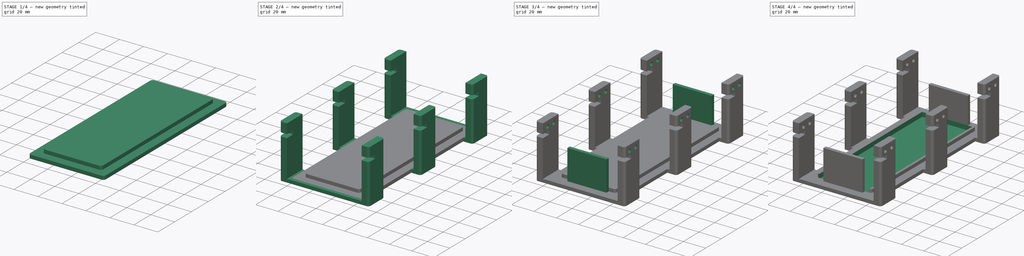
[diagram: build sequence overview — one tinted view per stage of 4, left to right]
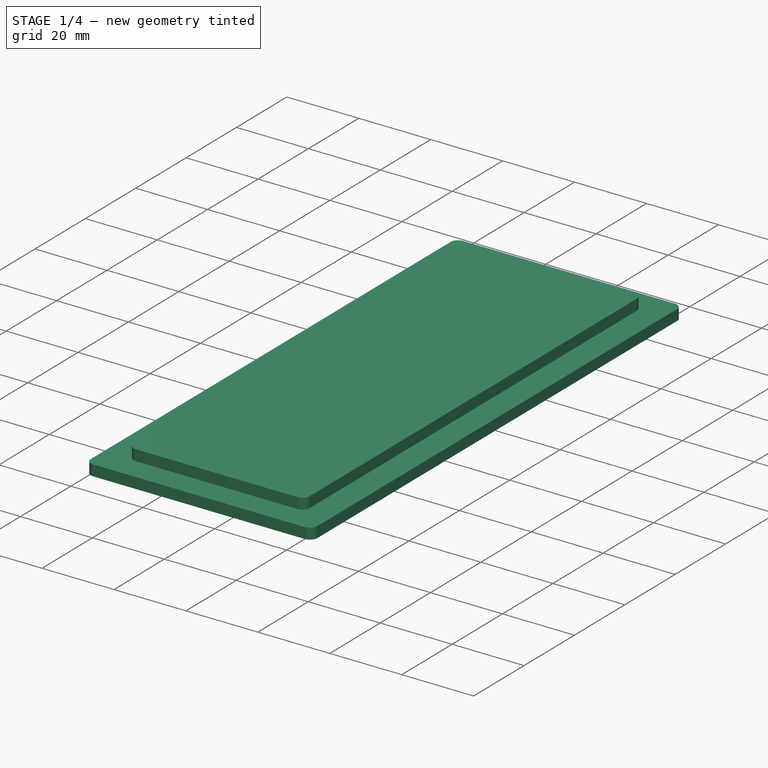
[diagram: stage 1 of 4 — iso view after this stage's code; geometry added in this stage tinted green]
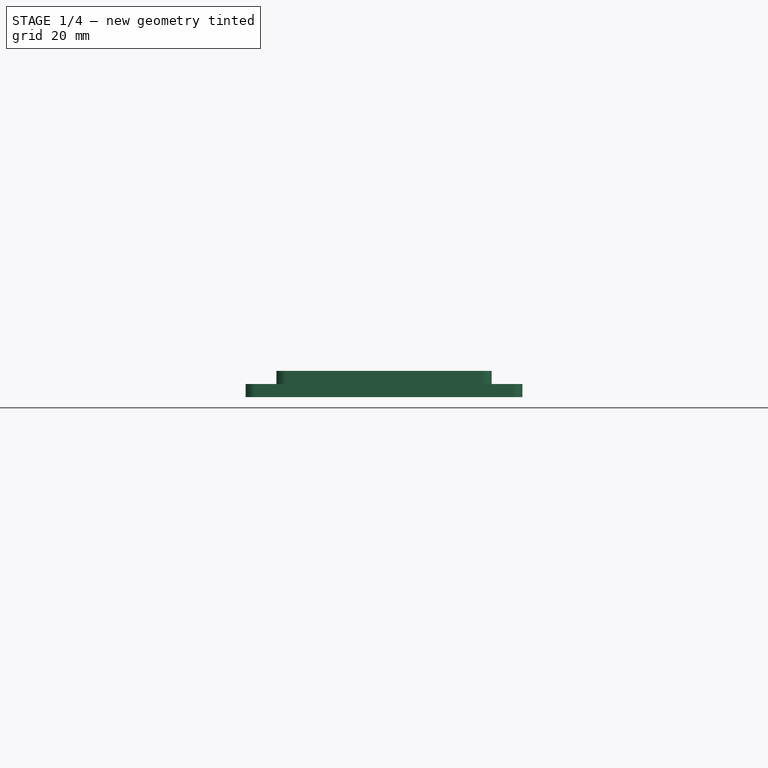
[diagram: stage 1 of 4 — front view after this stage's code; geometry added in this stage tinted green]
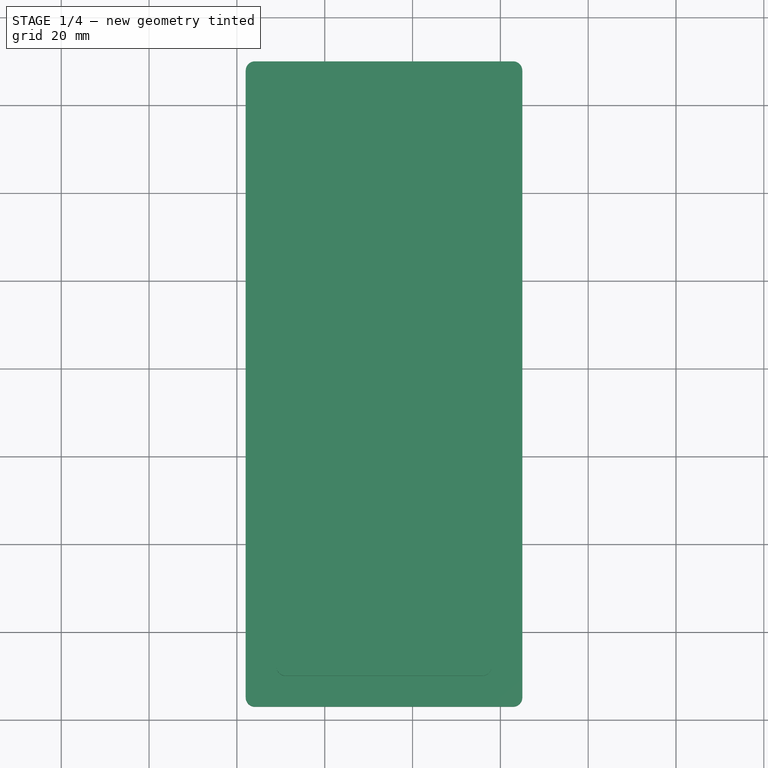
[diagram: stage 1 of 4 — top view after this stage's code; geometry added in this stage tinted green]
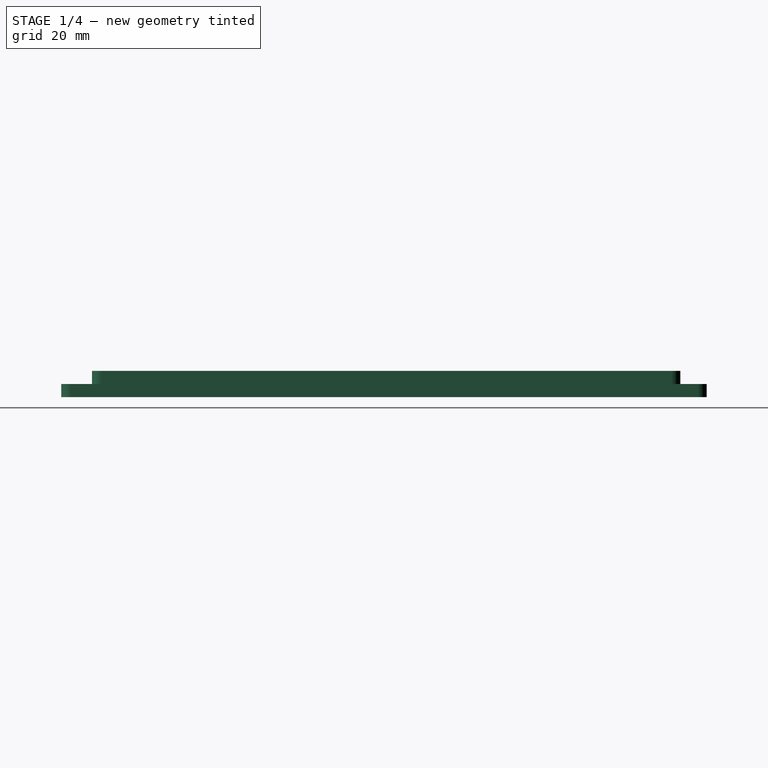
[diagram: stage 1 of 4 — right view after this stage's code; geometry added in this stage tinted green]
FCSTD DOCUMENT  (FreeCAD 1.0R39285 (Git))
Label: rr_battery_cnt
License: All rights reserved
LicenseURL: http://en.wikipedia.org/wiki/All_rights_reserved
objects: Sketcher::SketchObject×10, PartDesign::Pad×6, PartDesign::Pocket×2, PartDesign::Hole×2, Spreadsheet::Sheet×1, PartDesign::Body×1
note: 51 computed .brp shape members not serialized (recipe doc carries the construction recipe); baked Part::Feature solids carry a one-line shape summary decoded from their .brp

FEATURE [Sketcher::SketchObject] Sketch  label="battery"
  ArcFitTolerance = 1e-06
  AttachmentSupport = -> [XY_Plane]
  FullyConstrained = true
  MakeInternals = false
  MapMode = 5
  expr: Constraints[10] = Spreadsheet.offset_x + 1
  expr: Constraints[11] = Spreadsheet.offset_y + 2
  expr: Constraints[36] = Spreadsheet.offset_y - 1
  expr: Constraints[37] = Spreadsheet.offset_y
  expr: Constraints[38] = 43 + 6
  expr: Constraints[39] = 127 + 7
  expr: Constraints[9] = 132
  sketch-geometry (16):
    g0: LineSegment StartX=11 StartY=144 StartZ=0 EndX=11 EndY=12 EndZ=0
    g1: LineSegment StartX=11 StartY=12 StartZ=0 EndX=56 EndY=12 EndZ=0
    g2: LineSegment StartX=56 StartY=12 StartZ=0 EndX=56 EndY=144 EndZ=0
    g3: LineSegment StartX=56 StartY=144 StartZ=0 EndX=11 EndY=144 EndZ=0
    g4: LineSegment StartX=9 StartY=141.879 StartZ=0 EndX=9 EndY=12.1213 EndZ=0
    g5: LineSegment StartX=11.1213 StartY=10 StartZ=0 EndX=55.8787 EndY=10 EndZ=0
    g6: LineSegment StartX=58 StartY=12.1213 StartZ=0 EndX=58 EndY=141.879 EndZ=0
    g7: LineSegment StartX=55.8787 StartY=144 StartZ=0 EndX=11.1213 EndY=144 EndZ=0
    g8: ArcOfCircle CenterX=55.8787 CenterY=12.1213 CenterZ=0 NormalX=0 NormalY=0 NormalZ=1 AngleXU=0 Radius=2.12132 StartAngle=4.71239 EndAngle=6.28319
    g9: GeomPoint [constr] X=58 Y=10 Z=0
    g10: ArcOfCircle CenterX=11.1213 CenterY=12.1213 CenterZ=0 NormalX=0 NormalY=0 NormalZ=1 AngleXU=0 Radius=2.12132 StartAngle=3.14159 EndAngle=4.71239
    g11: GeomPoint [constr] X=9 Y=10 Z=0
    g12: ArcOfCircle CenterX=55.8787 CenterY=141.879 CenterZ=0 NormalX=0 NormalY=0 NormalZ=1 AngleXU=0 Radius=2.12132 StartAngle=-6.7768e-12 EndAngle=1.5708
    g13: GeomPoint [constr] X=58 Y=144 Z=0
    g14: ArcOfCircle CenterX=11.1213 CenterY=141.879 CenterZ=0 NormalX=0 NormalY=0 NormalZ=1 AngleXU=0 Radius=2.12132 StartAngle=1.5708 EndAngle=3.14159
    g15: GeomPoint [constr] X=9 Y=144 Z=0
  constraints (40):
    c: Coincident(g0,g1)
    c: Coincident(g1,g2)
    c: Coincident(g2,g3)
    c: Coincident(g3,g0)
    c: Vertical(g0)
    c: Vertical(g2)
    c: Horizontal(g1)
    c: Horizontal(g3)
    c: DistanceX(g0,g1) = 45
    c: DistanceY(g0,g0) = 132
    c: DistanceX(g-1,g0) = 11
    c: DistanceY(g-1,g0) = 12
    c: Vertical(g4)
    c: Vertical(g6)
    c: Horizontal(g5)
    c: Horizontal(g7)
    c: PointOnObject(g9,g5)
    c: PointOnObject(g9,g6)
    c: Tangent(g5,g8) = -1.5708
    c: Tangent(g6,g8) = -1.5708
    c: PointOnObject(g11,g4)
    c: PointOnObject(g11,g5)
    c: Tangent(g4,g10) = -1.5708
    c: Tangent(g5,g10) = -1.5708
    c: PointOnObject(g13,g7)
    c: PointOnObject(g13,g6)
    c: Tangent(g7,g12) = -1.5708
    c: Tangent(g6,g12) = -1.5708
    c: PointOnObject(g15,g7)
    c: PointOnObject(g15,g4)
    c: Tangent(g7,g14) = -1.5708
    c: Tangent(g4,g14) = -1.5708
    c: Distance(g7,g6) = 3
    c: Equal(g12,g14)
    c: Equal(g14,g10)
    c: Equal(g10,g8)
    c: DistanceX(g-1,g11) = 9
    c: DistanceY(g-1,g11) = 10
    c: DistanceX(g11,g9) = 49
    c: DistanceY(g5,g7) = 134
FEATURE [Spreadsheet::Sheet] Spreadsheet
  cells = A1='offset_x; B1(offset_x)=10; A2='offset_y; B2(offset_y)=10; A3='bat_branch_y; B3(bat_branch_y)=48
FEATURE [Sketcher::SketchObject] Sketch001  label="tray"
  ArcFitTolerance = 1e-06
  AttachmentSupport = -> [XY_Plane]
  FullyConstrained = true
  MakeInternals = false
  MapMode = 5
  sketch-geometry (12):
    g0: LineSegment StartX=2 StartY=147.879 StartZ=0 EndX=2 EndY=5.12132 EndZ=0
    g1: LineSegment StartX=4.12132 StartY=3 StartZ=0 EndX=62.8787 EndY=3 EndZ=0
    g2: LineSegment StartX=65 StartY=5.12132 StartZ=0 EndX=65 EndY=147.879 EndZ=0
    g3: LineSegment StartX=62.8787 StartY=150 StartZ=0 EndX=4.12132 EndY=150 EndZ=0
    g4: ArcOfCircle CenterX=4.12132 CenterY=147.879 CenterZ=0 NormalX=0 NormalY=0 NormalZ=1 AngleXU=0 Radius=2.12132 StartAngle=1.5708 EndAngle=3.14159
    g5: GeomPoint [constr] X=2 Y=150 Z=0
    g6: ArcOfCircle CenterX=62.8787 CenterY=147.879 CenterZ=0 NormalX=0 NormalY=0 NormalZ=1 AngleXU=0 Radius=2.12132 StartAngle=-4.4e-15 EndAngle=1.5708
    g7: GeomPoint [constr] X=65 Y=150 Z=0
    g8: ArcOfCircle CenterX=62.8787 CenterY=5.12132 CenterZ=0 NormalX=0 NormalY=0 NormalZ=1 AngleXU=0 Radius=2.12132 StartAngle=4.71239 EndAngle=6.28319
    g9: GeomPoint [constr] X=65 Y=3 Z=0
    g10: ArcOfCircle CenterX=4.12132 CenterY=5.12132 CenterZ=0 NormalX=0 NormalY=0 NormalZ=1 AngleXU=0 Radius=2.12132 StartAngle=3.14159 EndAngle=4.71239
    g11: GeomPoint [constr] X=2 Y=3 Z=0
  constraints (28):
    c: Vertical(g0)
    c: Vertical(g2)
    c: Horizontal(g1)
    c: Horizontal(g3)
    c: PointOnObject(g5,g0)
    c: PointOnObject(g5,g3)
    c: Tangent(g0,g4) = -1.5708
    c: Tangent(g3,g4) = -1.5708
    c: PointOnObject(g7,g3)
    c: PointOnObject(g7,g2)
    c: Tangent(g3,g6) = -1.5708
    c: Tangent(g2,g6) = -1.5708
    c: PointOnObject(g9,g1)
    c: PointOnObject(g9,g2)
    c: Tangent(g1,g8) = -1.5708
    c: Tangent(g2,g8) = -1.5708
    c: PointOnObject(g11,g0)
    c: PointOnObject(g11,g1)
    c: Tangent(g0,g10) = -1.5708
    c: Tangent(g1,g10) = -1.5708
    c: Distance(g1,g0) = 3
    c: Equal(g10,g8)
    c: Equal(g8,g6)
    c: Equal(g6,g4)
    c: DistanceX(g5,g7) = 63
    c: DistanceY(g9,g7) = 147
    c: DistanceX(g-1,g9) = 65
    c: DistanceY(g-1,g5) = 150
FEATURE [PartDesign::Pad] Pad
  Direction = (0,0,1)
  Length = 3
  Length2 = 10
  Profile = -> Sketch001
  ReferenceAxis = -> Sketch001 [N_Axis]
  Suppressed = false
  Type = 0
FEATURE [PartDesign::Pad] Pad001
  BaseFeature = -> Pad
  Direction = (0,0,1)
  Length = 6
  Length2 = 10
  Profile = -> Sketch
  ReferenceAxis = -> Sketch [N_Axis]
  Suppressed = false
  Type = 0
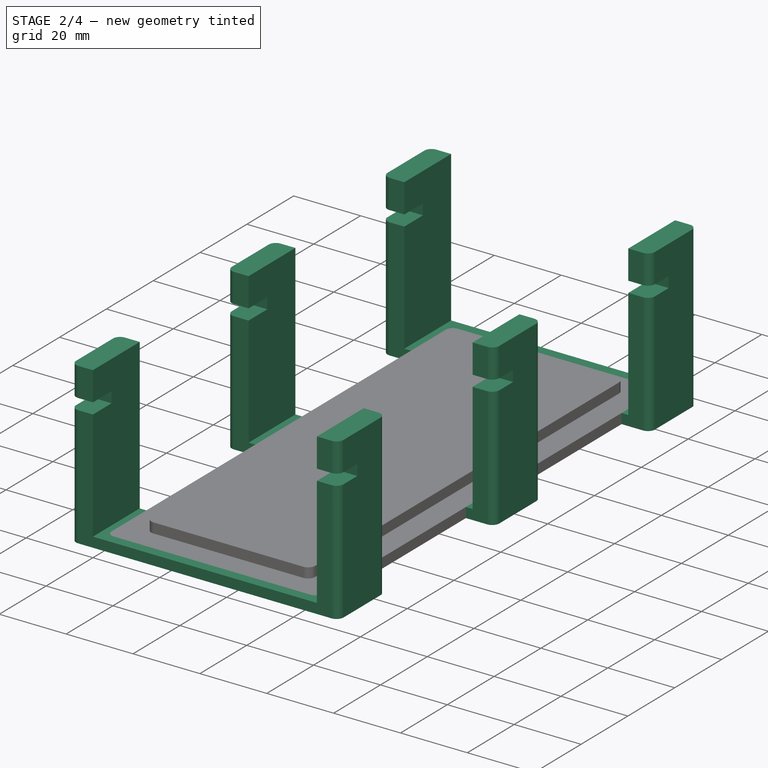
[diagram: stage 2 of 4 — iso view after this stage's code; geometry added in this stage tinted green]
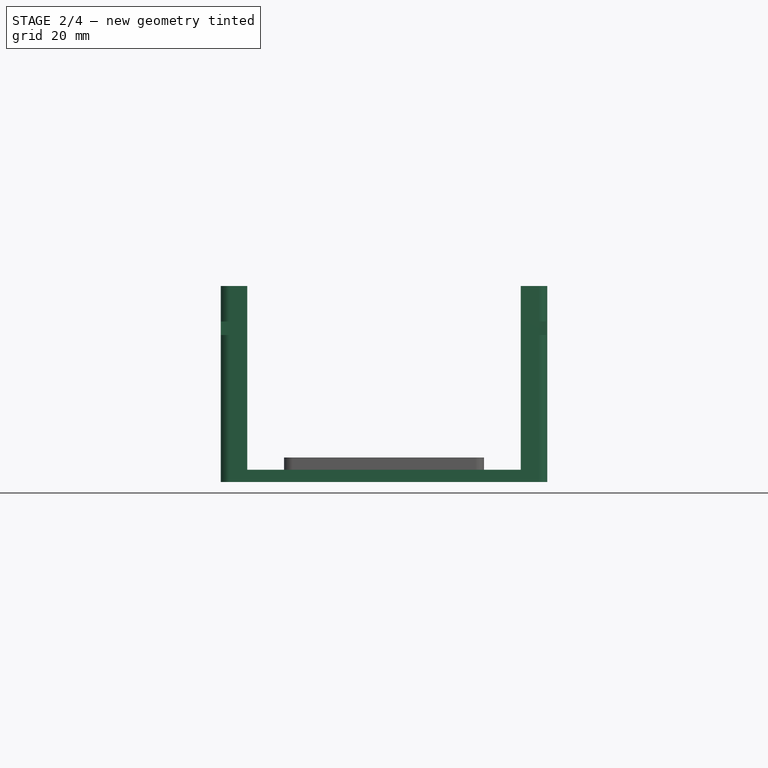
[diagram: stage 2 of 4 — front view after this stage's code; geometry added in this stage tinted green]
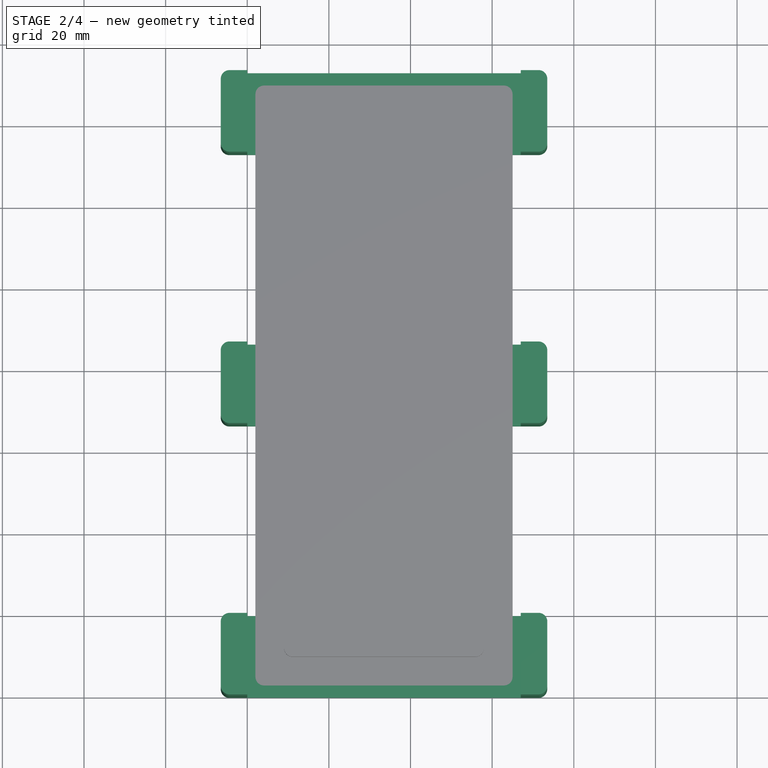
[diagram: stage 2 of 4 — top view after this stage's code; geometry added in this stage tinted green]
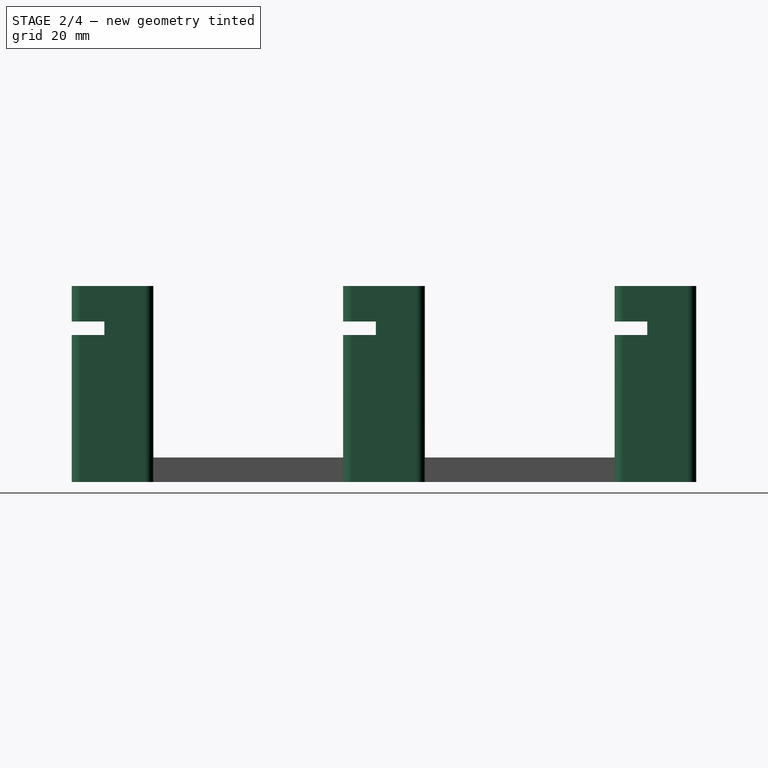
[diagram: stage 2 of 4 — right view after this stage's code; geometry added in this stage tinted green]
FEATURE [Sketcher::SketchObject] Sketch002  label="bat_strut"
  ArcFitTolerance = 1e-06
  AttachmentSupport = -> [XY_Plane]
  FullyConstrained = true
  MakeInternals = false
  MapMode = 5
  sketch-geometry (36):
    g0: LineSegment StartX=-6.5 StartY=150.879 StartZ=0 EndX=-6.5 EndY=135.121 EndZ=0
    g1: LineSegment StartX=-4.37868 StartY=133 StartZ=0 EndX=71.3787 EndY=133 EndZ=0
    g2: LineSegment StartX=73.5 StartY=135.121 StartZ=0 EndX=73.5 EndY=150.879 EndZ=0
    g3: LineSegment StartX=71.3787 StartY=153 StartZ=0 EndX=-4.37868 EndY=153 EndZ=0
    g4: LineSegment StartX=-6.5 StartY=84.3787 StartZ=0 EndX=-6.5 EndY=68.6213 EndZ=0
    g5: LineSegment StartX=-4.37868 StartY=66.5 StartZ=0 EndX=71.3787 EndY=66.5 EndZ=0
    g6: LineSegment StartX=73.5 StartY=68.6213 StartZ=0 EndX=73.5 EndY=84.3787 EndZ=0
    g7: LineSegment StartX=71.3787 StartY=86.5 StartZ=0 EndX=-4.37868 EndY=86.5 EndZ=0
    g8: LineSegment StartX=-6.5 StartY=17.8787 StartZ=0 EndX=-6.5 EndY=2.12132 EndZ=0
    g9: LineSegment StartX=-4.37868 StartY=-4e-16 StartZ=0 EndX=71.3787 EndY=-4e-16 EndZ=0
    g10: LineSegment StartX=73.5 StartY=2.12132 StartZ=0 EndX=73.5 EndY=17.8787 EndZ=0
    g11: LineSegment StartX=71.3787 StartY=20 StartZ=0 EndX=-4.37868 EndY=20 EndZ=0
    g12: ArcOfCircle CenterX=-4.37868 CenterY=150.879 CenterZ=0 NormalX=0 NormalY=0 NormalZ=1 AngleXU=0 Radius=2.12132 StartAngle=1.5708 EndAngle=3.14159
    g13: GeomPoint [constr] X=-6.5 Y=153 Z=0
    g14: ArcOfCircle CenterX=71.3787 CenterY=150.879 CenterZ=0 NormalX=0 NormalY=0 NormalZ=1 AngleXU=0 Radius=2.12132 StartAngle=-2.7e-15 EndAngle=1.5708
    g15: GeomPoint [constr] X=73.5 Y=153 Z=0
    g16: ArcOfCircle CenterX=71.3787 CenterY=84.3787 CenterZ=0 NormalX=0 NormalY=0 NormalZ=1 AngleXU=0 Radius=2.12132 StartAngle=-1.8e-15 EndAngle=1.5708
    g17: GeomPoint [constr] X=73.5 Y=86.5 Z=0
    g18: ArcOfCircle CenterX=-4.37868 CenterY=84.3787 CenterZ=0 NormalX=0 NormalY=0 NormalZ=1 AngleXU=0 Radius=2.12132 StartAngle=1.5708 EndAngle=3.14159
    g19: GeomPoint [constr] X=-6.5 Y=86.5 Z=0
    g20: ArcOfCircle CenterX=-4.37868 CenterY=17.8787 CenterZ=0 NormalX=0 NormalY=0 NormalZ=1 AngleXU=0 Radius=2.12132 StartAngle=1.5708 EndAngle=3.14159
    g21: GeomPoint [constr] X=-6.5 Y=20 Z=0
    g22: ArcOfCircle CenterX=-4.37868 CenterY=2.12132 CenterZ=0 NormalX=0 NormalY=0 NormalZ=1 AngleXU=0 Radius=2.12132 StartAngle=3.14159 EndAngle=4.71239
    g23: GeomPoint [constr] X=-6.5 Y=-5e-16 Z=0
    g24: ArcOfCircle CenterX=71.3787 CenterY=2.12132 CenterZ=0 NormalX=0 NormalY=0 NormalZ=1 AngleXU=0 Radius=2.12132 StartAngle=4.71239 EndAngle=6.28319
    g25: GeomPoint [constr] X=73.5 Y=-5e-16 Z=0
    g26: ArcOfCircle CenterX=71.3787 CenterY=17.8787 CenterZ=0 NormalX=0 NormalY=0 NormalZ=1 AngleXU=0 Radius=2.12132 StartAngle=0 EndAngle=1.5708
    g27: GeomPoint [constr] X=73.5 Y=20 Z=0
    g28: ArcOfCircle CenterX=71.3787 CenterY=68.6213 CenterZ=0 NormalX=0 NormalY=0 NormalZ=1 AngleXU=0 Radius=2.12132 StartAngle=4.71239 EndAngle=6.28319
    g29: GeomPoint [constr] X=73.5 Y=66.5 Z=0
    g30: ArcOfCircle CenterX=-4.37868 CenterY=68.6213 CenterZ=0 NormalX=0 NormalY=0 NormalZ=1 AngleXU=0 Radius=2.12132 StartAngle=3.14159 EndAngle=4.71239
    g31: GeomPoint [constr] X=-6.5 Y=66.5 Z=0
    g32: ArcOfCircle CenterX=71.3787 CenterY=135.121 CenterZ=0 NormalX=0 NormalY=0 NormalZ=1 AngleXU=0 Radius=2.12132 StartAngle=4.71239 EndAngle=6.28319
    g33: GeomPoint [constr] X=73.5 Y=133 Z=0
    g34: ArcOfCircle CenterX=-4.37868 CenterY=135.121 CenterZ=0 NormalX=0 NormalY=0 NormalZ=1 AngleXU=0 Radius=2.12132 StartAngle=3.14159 EndAngle=4.71239
    g35: GeomPoint [constr] X=-6.5 Y=133 Z=0
  constraints (84):
    c: Vertical(g0)
    c: Vertical(g2)
    c: Horizontal(g1)
    c: Horizontal(g3)
    c: Vertical(g4)
    c: Vertical(g6)
    c: Horizontal(g5)
    c: Horizontal(g7)
    c: Vertical(g8)
    c: Vertical(g10)
    c: Horizontal(g9)
    c: Horizontal(g11)
    c: PointOnObject(g13,g0)
    c: PointOnObject(g13,g3)
    c: Tangent(g0,g12) = -1.5708
    c: Tangent(g3,g12) = -1.5708
    c: PointOnObject(g15,g3)
    c: PointOnObject(g15,g2)
    c: Tangent(g3,g14) = -1.5708
    c: Tangent(g2,g14) = -1.5708
    c: PointOnObject(g17,g7)
    c: PointOnObject(g17,g6)
    c: Tangent(g7,g16) = -1.5708
    c: Tangent(g6,g16) = -1.5708
    c: PointOnObject(g19,g7)
    c: PointOnObject(g19,g4)
    c: Tangent(g7,g18) = -1.5708
    c: Tangent(g4,g18) = -1.5708
    c: PointOnObject(g21,g11)
    c: PointOnObject(g21,g8)
    c: Tangent(g11,g20) = -1.5708
    c: Tangent(g8,g20) = -1.5708
    c: PointOnObject(g23,g8)
    c: PointOnObject(g23,g9)
    c: Tangent(g8,g22) = -1.5708
    c: Tangent(g9,g22) = -1.5708
    c: PointOnObject(g25,g9)
    c: PointOnObject(g25,g10)
    c: Tangent(g9,g24) = -1.5708
    c: Tangent(g10,g24) = -1.5708
    c: PointOnObject(g27,g11)
    c: PointOnObject(g27,g10)
    c: Tangent(g11,g26) = -1.5708
    c: Tangent(g10,g26) = -1.5708
    c: PointOnObject(g29,g5)
    c: PointOnObject(g29,g6)
    c: Tangent(g5,g28) = -1.5708
    c: Tangent(g6,g28) = -1.5708
    c: PointOnObject(g31,g4)
    c: PointOnObject(g31,g5)
    c: Tangent(g4,g30) = -1.5708
    c: Tangent(g5,g30) = -1.5708
    c: PointOnObject(g33,g1)
    c: PointOnObject(g33,g2)
    c: Tangent(g1,g32) = -1.5708
    c: Tangent(g2,g32) = -1.5708
    c: PointOnObject(g35,g0)
    c: PointOnObject(g35,g1)
    c: Tangent(g0,g34) = -1.5708
    c: Tangent(g1,g34) = -1.5708
    c: Distance(g9,g8) = 3
    c: Equal(g22,g20)
    c: Equal(g20,g26)
    c: Equal(g26,g24)
    c: DistanceX(g23,g25) = 80
    c: DistanceY(g9,g11) = 20
    c: DistanceX(g8,g-1) = 6.5
    c: DistanceY(g-1,g11) = 20
    c: Equal(g26,g28)
    c: Equal(g28,g16)
    c: Equal(g16,g18)
    c: Equal(g18,g30)
    c: Vertical(g31,g21)
    c: Vertical(g29,g27)
    c: DistanceY(g27,g29) = 46.5
    c: DistanceY(g31,g19) = 20
    c: Equal(g16,g32)
    c: Equal(g32,g14)
    c: Equal(g14,g12)
    c: Equal(g12,g34)
    c: Vertical(g35,g19)
    c: Vertical(g33,g17)
    c: DistanceY(g17,g33) = 46.5
    c: DistanceY(g1,g3) = 20
FEATURE [Sketcher::SketchObject] Sketch003  label="bat_branch"
  ArcFitTolerance = 1e-06
  AttachmentSupport = -> [XY_Plane]
  FullyConstrained = true
  MakeInternals = false
  MapMode = 5
  sketch-geometry (48):
    g0: LineSegment StartX=67 StartY=20 StartZ=0 EndX=67 EndY=0 EndZ=0
    g1: LineSegment StartX=67 StartY=0 StartZ=0 EndX=71.3787 EndY=0 EndZ=0
    g2: LineSegment StartX=73.5 StartY=2.12132 StartZ=0 EndX=73.5 EndY=17.8787 EndZ=0
    g3: LineSegment StartX=71.3787 StartY=20 StartZ=0 EndX=67 EndY=20 EndZ=0
    g4: ArcOfCircle CenterX=71.3787 CenterY=17.8787 CenterZ=0 NormalX=0 NormalY=0 NormalZ=1 AngleXU=0 Radius=2.12132 StartAngle=6e-16 EndAngle=1.5708
    g5: GeomPoint [constr] X=73.5 Y=20 Z=0
    g6: ArcOfCircle CenterX=71.3787 CenterY=2.12132 CenterZ=0 NormalX=0 NormalY=0 NormalZ=1 AngleXU=0 Radius=2.12132 StartAngle=4.71239 EndAngle=6.28319
    g7: GeomPoint [constr] X=73.5 Y=0 Z=0
    g8: LineSegment StartX=-6.5 StartY=17.8787 StartZ=0 EndX=-6.5 EndY=2.12132 EndZ=0
    g9: LineSegment StartX=-4.37868 StartY=0 StartZ=0 EndX=0 EndY=0 EndZ=0
    g10: LineSegment StartX=0 StartY=0 StartZ=0 EndX=0 EndY=20 EndZ=0
    g11: LineSegment StartX=0 StartY=20 StartZ=0 EndX=-4.37868 EndY=20 EndZ=0
    g12: ArcOfCircle CenterX=-4.37868 CenterY=17.8787 CenterZ=0 NormalX=0 NormalY=0 NormalZ=1 AngleXU=0 Radius=2.12132 StartAngle=1.5708 EndAngle=3.14159
    g13: GeomPoint [constr] X=-6.5 Y=20 Z=0
    g14: ArcOfCircle CenterX=-4.37868 CenterY=2.12132 CenterZ=0 NormalX=0 NormalY=0 NormalZ=1 AngleXU=0 Radius=2.12132 StartAngle=3.14159 EndAngle=4.71239
    g15: GeomPoint [constr] X=-6.5 Y=0 Z=0
    g16: LineSegment StartX=67 StartY=86.5 StartZ=0 EndX=67 EndY=66.5 EndZ=0
    g17: LineSegment StartX=67 StartY=66.5 StartZ=0 EndX=71.3787 EndY=66.5 EndZ=0
    g18: LineSegment StartX=73.5 StartY=68.6213 StartZ=0 EndX=73.5 EndY=84.3787 EndZ=0
    g19: LineSegment StartX=71.3787 StartY=86.5 StartZ=0 EndX=67 EndY=86.5 EndZ=0
    g20: ArcOfCircle CenterX=71.3787 CenterY=68.6213 CenterZ=0 NormalX=0 NormalY=0 NormalZ=1 AngleXU=0 Radius=2.12132 StartAngle=4.71239 EndAngle=6.28319
    g21: GeomPoint [constr] X=73.5 Y=66.5 Z=0
    g22: ArcOfCircle CenterX=71.3787 CenterY=84.3787 CenterZ=0 NormalX=0 NormalY=0 NormalZ=1 AngleXU=0 Radius=2.12132 StartAngle=3.1e-15 EndAngle=1.5708
    g23: GeomPoint [constr] X=73.5 Y=86.5 Z=0
    g24: LineSegment StartX=-6.5 StartY=84.3787 StartZ=0 EndX=-6.5 EndY=68.6213 EndZ=0
    g25: LineSegment StartX=-4.37868 StartY=66.5 StartZ=0 EndX=0 EndY=66.5 EndZ=0
    g26: LineSegment StartX=0 StartY=66.5 StartZ=0 EndX=0 EndY=86.5 EndZ=0
    g27: LineSegment StartX=0 StartY=86.5 StartZ=0 EndX=-4.37868 EndY=86.5 EndZ=0
    g28: ArcOfCircle CenterX=-4.37868 CenterY=84.3787 CenterZ=0 NormalX=0 NormalY=0 NormalZ=1 AngleXU=0 Radius=2.12132 StartAngle=1.5708 EndAngle=3.14159
    g29: GeomPoint [constr] X=-6.5 Y=86.5 Z=0
    g30: ArcOfCircle CenterX=-4.37868 CenterY=68.6213 CenterZ=0 NormalX=0 NormalY=0 NormalZ=1 AngleXU=0 Radius=2.12132 StartAngle=3.14159 EndAngle=4.71239
    g31: GeomPoint [constr] X=-6.5 Y=66.5 Z=0
    g32: LineSegment StartX=67 StartY=153 StartZ=0 EndX=67 EndY=133 EndZ=0
    g33: LineSegment StartX=67 StartY=133 StartZ=0 EndX=71.3787 EndY=133 EndZ=0
    g34: LineSegment StartX=73.5 StartY=135.121 StartZ=0 EndX=73.5 EndY=150.879 EndZ=0
    g35: LineSegment StartX=71.3787 StartY=153 StartZ=0 EndX=67 EndY=153 EndZ=0
    g36: ArcOfCircle CenterX=71.3787 CenterY=135.121 CenterZ=0 NormalX=0 NormalY=0 NormalZ=1 AngleXU=0 Radius=2.12132 StartAngle=4.71239 EndAngle=6.28319
    g37: GeomPoint [constr] X=73.5 Y=133 Z=0
    g38: ArcOfCircle CenterX=71.3787 CenterY=150.879 CenterZ=0 NormalX=0 NormalY=0 NormalZ=1 AngleXU=0 Radius=2.12132 StartAngle=9e-16 EndAngle=1.5708
    g39: GeomPoint [constr] X=73.5 Y=153 Z=0
    g40: LineSegment StartX=-6.5 StartY=150.879 StartZ=0 EndX=-6.5 EndY=135.121 EndZ=0
    g41: LineSegment StartX=-4.37868 StartY=133 StartZ=0 EndX=0 EndY=133 EndZ=0
    g42: LineSegment StartX=0 StartY=133 StartZ=0 EndX=0 EndY=153 EndZ=0
    g43: LineSegment StartX=0 StartY=153 StartZ=0 EndX=-4.37868 EndY=153 EndZ=0
    g44: ArcOfCircle CenterX=-4.37868 CenterY=135.121 CenterZ=0 NormalX=0 NormalY=0 NormalZ=1 AngleXU=0 Radius=2.12132 StartAngle=3.14159 EndAngle=4.71239
    g45: GeomPoint [constr] X=-6.5 Y=133 Z=0
    g46: ArcOfCircle CenterX=-4.37868 CenterY=150.879 CenterZ=0 NormalX=0 NormalY=0 NormalZ=1 AngleXU=0 Radius=2.12132 StartAngle=1.5708 EndAngle=3.14159
    g47: GeomPoint [constr] X=-6.5 Y=153 Z=0
  constraints (119):
    c: Coincident(g0,g1)
    c: Coincident(g3,g0)
    c: Vertical(g0)
    c: Vertical(g2)
    c: Horizontal(g1)
    c: Horizontal(g3)
    c: PointOnObject(g7,g-1)
    c: PointOnObject(g5,g3)
    c: PointOnObject(g5,g2)
    c: Tangent(g3,g4) = -1.5708
    c: Tangent(g2,g4) = -1.5708
    c: PointOnObject(g7,g1)
    c: PointOnObject(g7,g2)
    c: Tangent(g1,g6) = -1.5708
    c: Tangent(g2,g6) = -1.5708
    c: Distance(g3,g2) = 3
    c: DistanceY(g0,g0) = 20
    c: DistanceX(g0,g7) = 6.5
    c: DistanceX(g-1,g0) = 67
    c: Equal(g6,g4)
    c: Coincident(g9,g10)
    c: Coincident(g10,g11)
    c: Vertical(g8)
    c: Vertical(g10)
    c: Horizontal(g9)
    c: Horizontal(g11)
    c: Coincident(g9,g-1)
    c: PointOnObject(g13,g11)
    c: PointOnObject(g13,g8)
    c: Tangent(g11,g12) = -1.5708
    c: Tangent(g8,g12) = -1.5708
    c: PointOnObject(g15,g8)
    c: PointOnObject(g15,g9)
    c: Tangent(g8,g14) = -1.5708
    c: Tangent(g9,g14) = -1.5708
    c: Equal(g14,g12)
    c: Equal(g12,g4)
    c: Horizontal(g13,g5)
    c: DistanceX(g13,g10) = 6.5
    c: Coincident(g16,g17)
    c: Coincident(g19,g16)
    c: Vertical(g16)
    c: Vertical(g18)
    c: Horizontal(g17)
    c: Horizontal(g19)
    c: PointOnObject(g21,g17)
    c: PointOnObject(g21,g18)
    c: Tangent(g17,g20) = -1.5708
    c: Tangent(g18,g20) = -1.5708
    c: PointOnObject(g23,g19)
    c: PointOnObject(g23,g18)
    c: Tangent(g19,g22) = -1.5708
    c: Tangent(g18,g22) = -1.5708
    c: Equal(g22,g20)
    c: Equal(g20,g4)
    c: DistanceY(g16,g16) = 20
    c: DistanceY(g0,g16) = 46.5
    c: Vertical(g2,g18)
    c: Vertical(g16,g0)
    c: Coincident(g25,g26)
    c: Coincident(g26,g27)
    c: Vertical(g24)
    c: Vertical(g26)
    c: Horizontal(g25)
    c: Horizontal(g27)
    c: PointOnObject(g29,g24)
    c: PointOnObject(g29,g27)
    c: Tangent(g24,g28) = -1.5708
    c: Tangent(g27,g28) = -1.5708
    c: PointOnObject(g31,g24)
    c: PointOnObject(g31,g25)
    c: Tangent(g24,g30) = -1.5708
    c: Tangent(g25,g30) = -1.5708
    c: Equal(g6,g30)
    c: Equal(g30,g28)
    c: Horizontal(g26,g16)
    c: Horizontal(g21,g31)
    c: Vertical(g26,g9)
    c: Vertical(g31,g13)
    c: Coincident(g32,g33)
    c: Coincident(g35,g32)
    c: Vertical(g32)
    c: Vertical(g34)
    c: Horizontal(g33)
    c: Horizontal(g35)
    c: PointOnObject(g37,g33)
    c: PointOnObject(g37,g34)
    c: Tangent(g33,g36) = -1.5708
    c: Tangent(g34,g36) = -1.5708
    c: PointOnObject(g39,g35)
    c: PointOnObject(g39,g34)
    c: Tangent(g35,g38) = -1.5708
    c: Tangent(g34,g38) = -1.5708
    c: Equal(g36,g38)
    c: Equal(g38,g22)
    c: DistanceY(g33,g35) = 20
    c: Vertical(g32,g16)
    c: Vertical(g34,g18)
    c: DistanceY(g16,g32) = 46.5
    c: Coincident(g41,g42)
    c: Coincident(g42,g43)
    c: Vertical(g40)
    c: Vertical(g42)
    c: Horizontal(g41)
    c: Horizontal(g43)
    c: PointOnObject(g45,g40)
    c: PointOnObject(g45,g41)
    c: Tangent(g40,g44) = -1.5708
    c: Tangent(g41,g44) = -1.5708
    c: PointOnObject(g47,g40)
    c: PointOnObject(g47,g43)
    c: Tangent(g40,g46) = -1.5708
    c: Tangent(g43,g46) = -1.5708
    c: Equal(g46,g44)
    c: Equal(g44,g28)
    c: Vertical(g41,g26)
    c: Vertical(g45,g29)
    c: Horizontal(g42,g32)
    c: Horizontal(g41,g32)
FEATURE [PartDesign::Pad] Pad002
  BaseFeature = -> Pad001
  Direction = (0,0,1)
  Length = 3
  Length2 = 10
  Profile = -> Sketch002
  ReferenceAxis = -> Sketch002 [N_Axis]
  Suppressed = false
  Type = 0
FEATURE [PartDesign::Pad] Pad003
  BaseFeature = -> Pad002
  Direction = (0,0,1)
  Length = 48
  Length2 = 10
  Profile = -> Sketch003
  ReferenceAxis = -> Sketch003 [N_Axis]
  Suppressed = false
  Type = 0
  expr: Length = Spreadsheet.bat_branch_y
FEATURE [Sketcher::SketchObject] Sketch004
  ArcFitTolerance = 1e-06
  AttachmentSupport = -> [YZ_Plane]
  FullyConstrained = true
  MakeInternals = false
  MapMode = 5
  Placement = pos=(0,0,0) rot=(0.57735,0.57735,0.57735;2.0944rad)
  expr: Constraints[23] = 46.5 + 12
  expr: Constraints[35] = 46.5 + 12
  expr: Constraints[9] = Spreadsheet.bat_branch_y - 12
  sketch-geometry (12):
    g0: LineSegment StartX=0 StartY=39.3 StartZ=0 EndX=0 EndY=36 EndZ=0
    g1: LineSegment StartX=0 StartY=36 StartZ=0 EndX=8 EndY=36 EndZ=0
    g2: LineSegment StartX=8 StartY=36 StartZ=0 EndX=8 EndY=39.3 EndZ=0
    g3: LineSegment StartX=8 StartY=39.3 StartZ=0 EndX=0 EndY=39.3 EndZ=0
    g4: LineSegment StartX=66.5 StartY=39.3 StartZ=0 EndX=66.5 EndY=36 EndZ=0
    g5: LineSegment StartX=66.5 StartY=36 StartZ=0 EndX=74.5 EndY=36 EndZ=0
    g6: LineSegment StartX=74.5 StartY=36 StartZ=0 EndX=74.5 EndY=39.3 EndZ=0
    g7: LineSegment StartX=74.5 StartY=39.3 StartZ=0 EndX=66.5 EndY=39.3 EndZ=0
    g8: LineSegment StartX=133 StartY=39.3 StartZ=0 EndX=133 EndY=36 EndZ=0
    g9: LineSegment StartX=133 StartY=36 StartZ=0 EndX=141 EndY=36 EndZ=0
    g10: LineSegment StartX=141 StartY=36 StartZ=0 EndX=141 EndY=39.3 EndZ=0
    g11: LineSegment StartX=141 StartY=39.3 StartZ=0 EndX=133 EndY=39.3 EndZ=0
  constraints (36):
    c: Coincident(g0,g1)
    c: Coincident(g1,g2)
    c: Coincident(g2,g3)
    c: Coincident(g3,g0)
    c: Vertical(g0)
    c: Vertical(g2)
    c: Horizontal(g1)
    c: Horizontal(g3)
    c: DistanceY(g0,g0) = 3.3
    c: DistanceY(g-1,g0) = 36
    c: DistanceX(g0,g2) = 8
    c: DistanceX(g-1,g1) = 8
    c: Coincident(g4,g5)
    c: Coincident(g5,g6)
    c: Coincident(g6,g7)
    c: Coincident(g7,g4)
    c: Vertical(g4)
    c: Vertical(g6)
    c: Horizontal(g5)
    c: Horizontal(g7)
    c: Horizontal(g2,g4)
    c: Horizontal(g1,g4)
    c: DistanceX(g4,g6) = 8
    c: DistanceX(g2,g4) = 58.5
    c: Coincident(g8,g9)
    c: Coincident(g9,g10)
    c: Coincident(g10,g11)
    c: Coincident(g11,g8)
    c: Vertical(g8)
    c: Vertical(g10)
    c: Horizontal(g9)
    c: Horizontal(g11)
    c: Horizontal(g8,g5)
    c: Horizontal(g6,g8)
    c: DistanceX(g8,g10) = 8
    c: DistanceX(g6,g8) = 58.5
FEATURE [PartDesign::Pocket] Pocket
  BaseFeature = -> Pad003
  Direction = (-1,0,0)
  Length = 100
  Length2 = 100
  Profile = -> Sketch004
  ReferenceAxis = -> Sketch004 [N_Axis]
  Suppressed = false
  Type = 4
  UseCustomVector = true
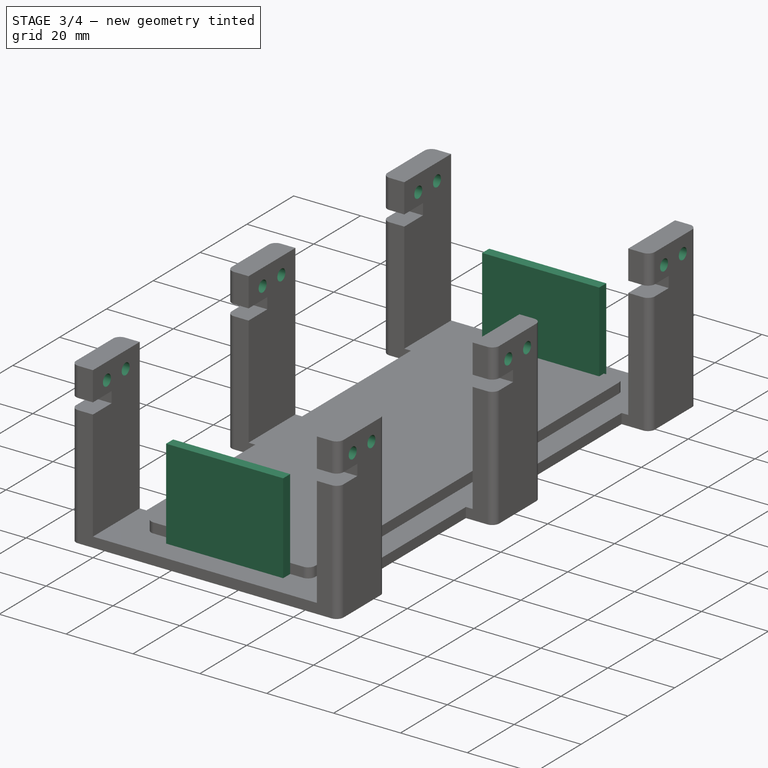
[diagram: stage 3 of 4 — iso view after this stage's code; geometry added in this stage tinted green]
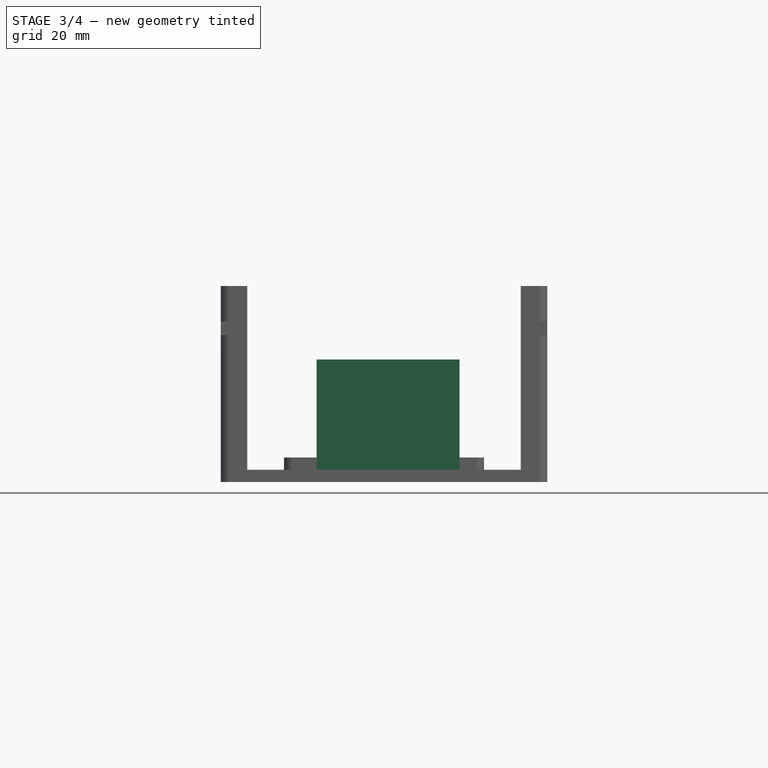
[diagram: stage 3 of 4 — front view after this stage's code; geometry added in this stage tinted green]
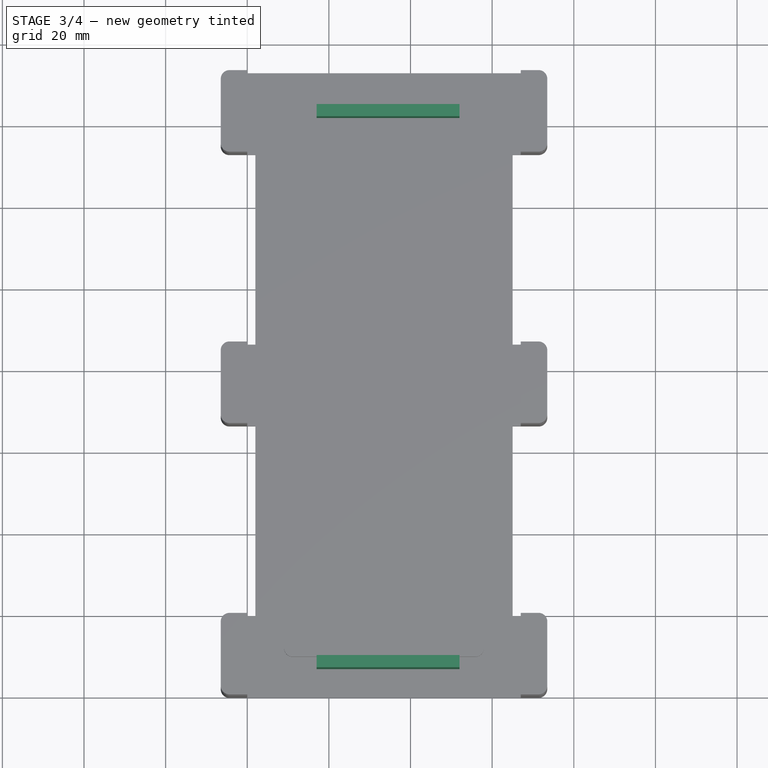
[diagram: stage 3 of 4 — top view after this stage's code; geometry added in this stage tinted green]
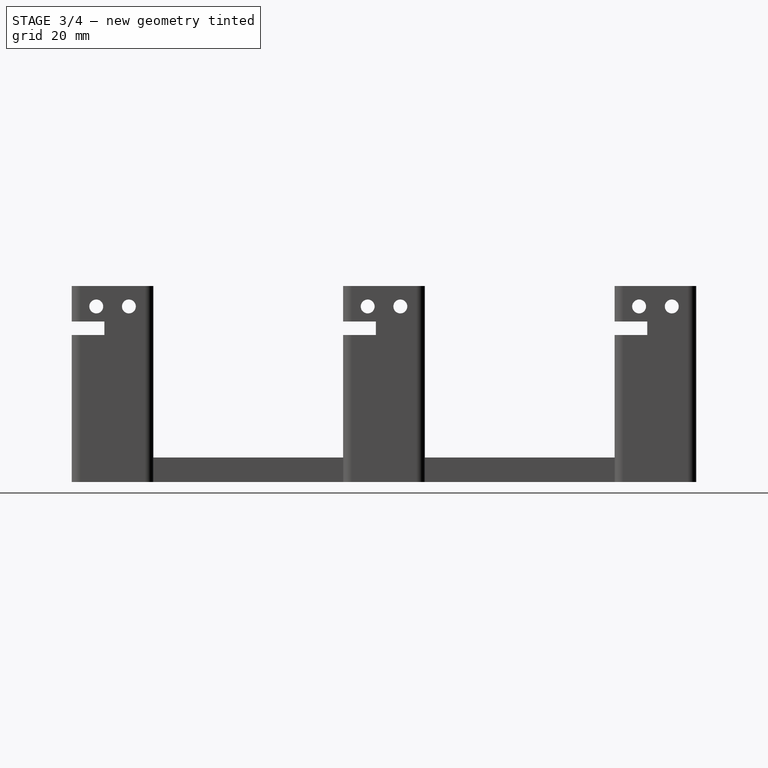
[diagram: stage 3 of 4 — right view after this stage's code; geometry added in this stage tinted green]
FEATURE [Sketcher::SketchObject] Sketch005
  ArcFitTolerance = 1e-06
  AttachmentSupport = -> [YZ_Plane]
  FullyConstrained = true
  MakeInternals = false
  MapMode = 5
  Placement = pos=(0,0,0) rot=(0.57735,0.57735,0.57735;2.0944rad)
  expr: Constraints[17] = Spreadsheet.bat_branch_y - 5
  sketch-geometry (6):
    g0: Circle CenterX=6 CenterY=43 CenterZ=0 NormalX=0 NormalY=0 NormalZ=1 AngleXU=0 Radius=1.5
    g1: Circle CenterX=14 CenterY=43 CenterZ=0 NormalX=0 NormalY=0 NormalZ=1 AngleXU=0 Radius=1.5
    g2: Circle CenterX=72.5 CenterY=43 CenterZ=0 NormalX=0 NormalY=0 NormalZ=1 AngleXU=0 Radius=1.5
    g3: Circle CenterX=80.5 CenterY=43 CenterZ=0 NormalX=0 NormalY=0 NormalZ=1 AngleXU=0 Radius=1.5
    g4: Circle CenterX=139 CenterY=43 CenterZ=0 NormalX=0 NormalY=0 NormalZ=1 AngleXU=0 Radius=1.5
    g5: Circle CenterX=147 CenterY=43 CenterZ=0 NormalX=0 NormalY=0 NormalZ=1 AngleXU=0 Radius=1.5
  constraints (14):
    c: Equal(g0, g1-g5) x5
    c: Diameter(g0) = 3
    c: Horizontal(g0,g1)
    c: Horizontal(g1,g2)
    c: Horizontal(g2,g3)
    c: Horizontal(g3,g4)
    c: Horizontal(g4,g5)
    c: DistanceX(g-1,g0) = 6
    c: DistanceX(g0,g1) = 8
    c: DistanceX(g2,g3) = 8
    c: DistanceX(g4,g5) = 8
    c: DistanceX(g0,g2) = 66.5
    c: DistanceX(g2,g4) = 66.5
    c: DistanceY(g-1,g0) = 43
FEATURE [PartDesign::Hole] Hole
  BaseFeature = -> Pocket
  CustomThreadClearance = 0
  Depth = 360.41
  DepthType = 1
  Diameter = 3.4
  DrillForDepth = false
  DrillPoint = 1
  DrillPointAngle = 118
  HoleCutCountersinkAngle = 90
  HoleCutCustomValues = false
  HoleCutDepth = 0
  HoleCutDiameter = 6.1
  HoleCutType = 0
  ModelThread = false
  Profile = -> Sketch005
  Suppressed = false
  Tapered = false
  TaperedAngle = 90
  ThreadClass = 0
  ThreadDepth = 360.41
  ThreadDepthType = 0
  ThreadDirection = 0
  ThreadFit = 0
  ThreadSize = 9
  ThreadType = 1
  Threaded = false
  UseCustomThreadClearance = false
FEATURE [Sketcher::SketchObject] Sketch006
  ArcFitTolerance = 1e-06
  AttachmentSupport = -> [YZ_Plane]
  FullyConstrained = true
  MakeInternals = false
  MapMode = 5
  Placement = pos=(0,0,0) rot=(0.57735,0.57735,0.57735;2.0944rad)
  expr: Constraints[17] = Spreadsheet.bat_branch_y - 5
  sketch-geometry (6):
    g0: Circle CenterX=6 CenterY=43 CenterZ=0 NormalX=0 NormalY=0 NormalZ=1 AngleXU=0 Radius=1.5
    g1: Circle CenterX=14 CenterY=43 CenterZ=0 NormalX=0 NormalY=0 NormalZ=1 AngleXU=0 Radius=1.5
    g2: Circle CenterX=72.5 CenterY=43 CenterZ=0 NormalX=0 NormalY=0 NormalZ=1 AngleXU=0 Radius=1.5
    g3: Circle CenterX=80.5 CenterY=43 CenterZ=0 NormalX=0 NormalY=0 NormalZ=1 AngleXU=0 Radius=1.5
    g4: Circle CenterX=139 CenterY=43 CenterZ=0 NormalX=0 NormalY=0 NormalZ=1 AngleXU=0 Radius=1.5
    g5: Circle CenterX=147 CenterY=43 CenterZ=0 NormalX=0 NormalY=0 NormalZ=1 AngleXU=0 Radius=1.5
  constraints (18):
    c: Diameter(g0) = 3
    c: Equal(g0,g1)
    c: Equal(g1,g2)
    c: Equal(g2,g3)
    c: Equal(g3,g4)
    c: Equal(g4,g5)
    c: Horizontal(g0,g1)
    c: Horizontal(g1,g2)
    c: Horizontal(g2,g3)
    c: Horizontal(g3,g5)
    c: Horizontal(g5,g4)
    c: DistanceX(g0,g1) = 8
    c: DistanceX(g2,g3) = 8
    c: DistanceX(g4,g5) = 8
    c: DistanceX(g-1,g0) = 6
    c: DistanceX(g1,g3) = 66.5
    c: DistanceX(g3,g5) = 66.5
    c: DistanceY(g-1,g0) = 43
FEATURE [PartDesign::Hole] Hole001
  BaseFeature = -> Hole
  CustomThreadClearance = 0
  Depth = 361.986
  DepthType = 1
  Diameter = 3.4
  DrillForDepth = false
  DrillPoint = 1
  DrillPointAngle = 118
  HoleCutCountersinkAngle = 90
  HoleCutCustomValues = false
  HoleCutDepth = 0
  HoleCutDiameter = 6.1
  HoleCutType = 0
  ModelThread = false
  Profile = -> Sketch006
  Reversed = true
  Suppressed = false
  Tapered = false
  TaperedAngle = 90
  ThreadClass = 0
  ThreadDepth = 361.986
  ThreadDepthType = 0
  ThreadDirection = 0
  ThreadFit = 0
  ThreadSize = 9
  ThreadType = 1
  Threaded = false
  UseCustomThreadClearance = false
FEATURE [Sketcher::SketchObject] Sketch007
  ArcFitTolerance = 1e-06
  AttachmentSupport = -> [XY_Plane]
  FullyConstrained = true
  MakeInternals = false
  MapMode = 5
  sketch-geometry (8):
    g0: LineSegment StartX=17 StartY=10 StartZ=0 EndX=17 EndY=7 EndZ=0
    g1: LineSegment StartX=17 StartY=7 StartZ=0 EndX=52 EndY=7 EndZ=0
    g2: LineSegment StartX=52 StartY=7 StartZ=0 EndX=52 EndY=10 EndZ=0
    g3: LineSegment StartX=52 StartY=10 StartZ=0 EndX=17 EndY=10 EndZ=0
    g4: LineSegment StartX=17 StartY=145 StartZ=0 EndX=17 EndY=142 EndZ=0
    g5: LineSegment StartX=17 StartY=142 StartZ=0 EndX=52 EndY=142 EndZ=0
    g6: LineSegment StartX=52 StartY=142 StartZ=0 EndX=52 EndY=145 EndZ=0
    g7: LineSegment StartX=52 StartY=145 StartZ=0 EndX=17 EndY=145 EndZ=0
  constraints (24):
    c: Coincident(g0,g1)
    c: Coincident(g1,g2)
    c: Coincident(g2,g3)
    c: Coincident(g3,g0)
    c: Vertical(g0)
    c: Vertical(g2)
    c: Horizontal(g1)
    c: Horizontal(g3)
    c: Coincident(g4,g5)
    c: Coincident(g5,g6)
    c: Coincident(g6,g7)
    c: Coincident(g7,g4)
    c: Vertical(g4)
    c: Vertical(g6)
    c: Horizontal(g5)
    c: Horizontal(g7)
    c: Vertical(g5,g2)
    c: Vertical(g4,g0)
    c: DistanceX(g4,g6) = 35
    c: DistanceX(g-1,g0) = 17
    c: DistanceY(g1,g2) = 3
    c: DistanceY(g5,g6) = 3
    c: DistanceY(g-1,g0) = 10
    c: DistanceY(g0,g4) = 132
FEATURE [PartDesign::Pad] Pad004
  BaseFeature = -> Hole001
  Direction = (0,0,1)
  Length = 30
  Length2 = 10
  Profile = -> Sketch007
  ReferenceAxis = -> Sketch007 [N_Axis]
  Suppressed = false
  Type = 0
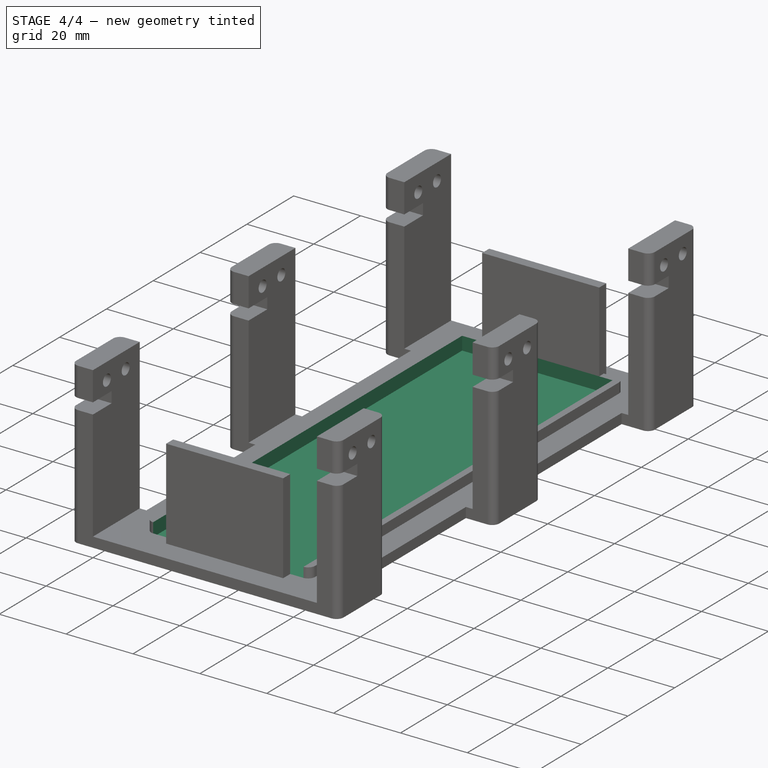
[diagram: stage 4 of 4 — iso view after this stage's code; geometry added in this stage tinted green]
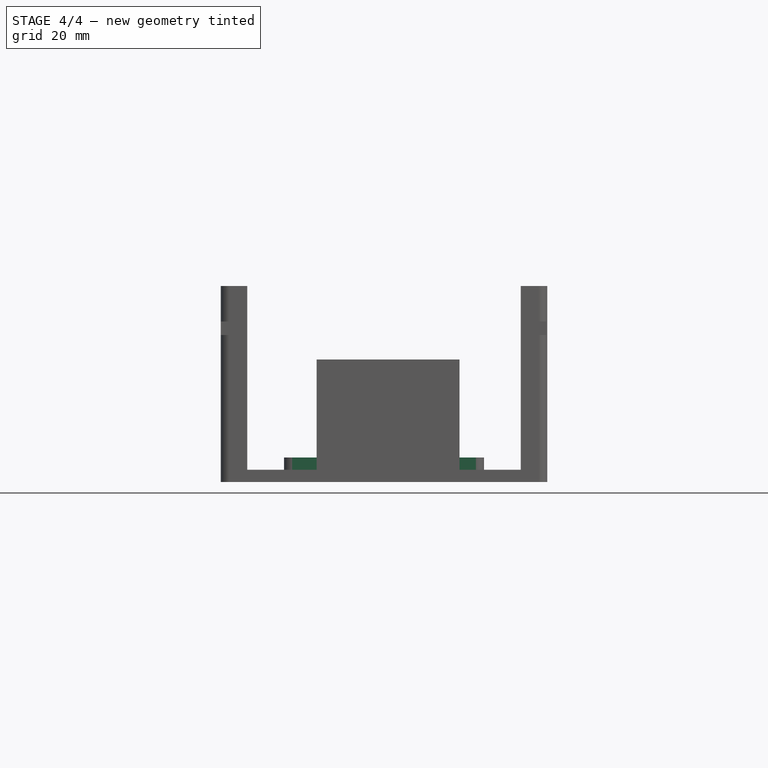
[diagram: stage 4 of 4 — front view after this stage's code; geometry added in this stage tinted green]
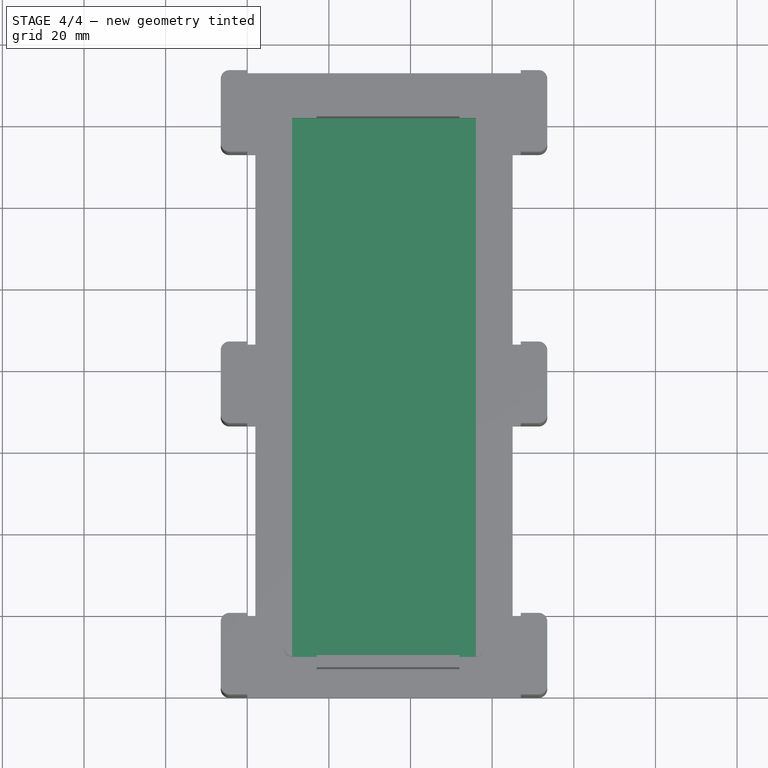
[diagram: stage 4 of 4 — top view after this stage's code; geometry added in this stage tinted green]
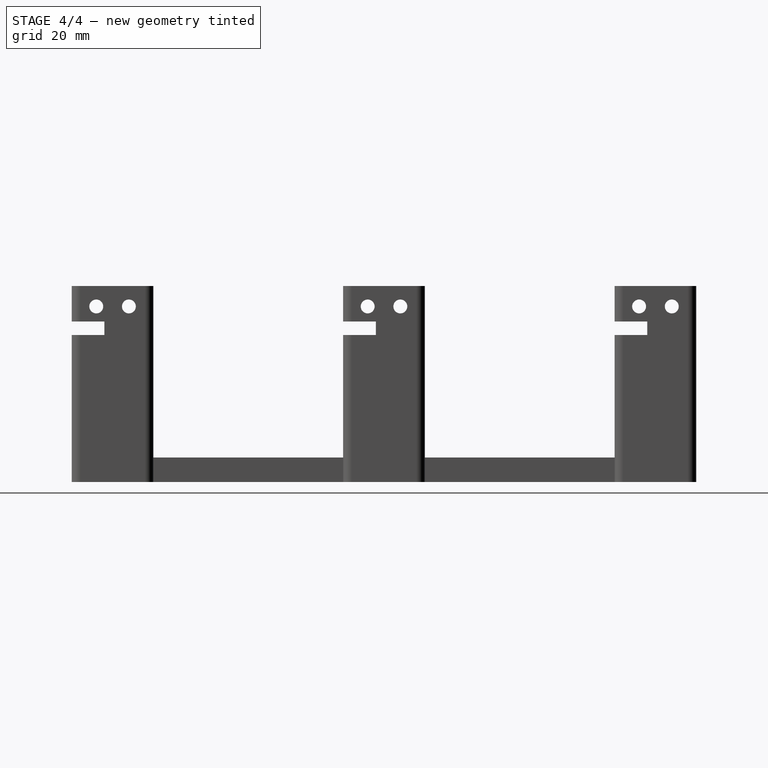
[diagram: stage 4 of 4 — right view after this stage's code; geometry added in this stage tinted green]
FEATURE [Sketcher::SketchObject] Sketch008  label="bed_cutout"
  ArcFitTolerance = 1e-06
  AttachmentSupport = -> [XY_Plane]
  FullyConstrained = true
  MakeInternals = false
  MapMode = 5
  sketch-geometry (4):
    g0: LineSegment StartX=11 StartY=142 StartZ=0 EndX=11 EndY=10 EndZ=0
    g1: LineSegment StartX=11 StartY=10 StartZ=0 EndX=56 EndY=10 EndZ=0
    g2: LineSegment StartX=56 StartY=10 StartZ=0 EndX=56 EndY=142 EndZ=0
    g3: LineSegment StartX=56 StartY=142 StartZ=0 EndX=11 EndY=142 EndZ=0
  constraints (12):
    c: Coincident(g0,g1)
    c: Coincident(g1,g2)
    c: Coincident(g2,g3)
    c: Coincident(g3,g0)
    c: Vertical(g0)
    c: Vertical(g2)
    c: Horizontal(g1)
    c: Horizontal(g3)
    c: DistanceX(g-1,g0) = 11
    c: DistanceY(g-1,g0) = 10
    c: DistanceX(g0,g1) = 45
    c: DistanceY(g1,g2) = 132
FEATURE [PartDesign::Pocket] Pocket001
  BaseFeature = -> Pad004
  Direction = (0,0,-1)
  Length = 10
  Length2 = 5
  Profile = -> Sketch008
  ReferenceAxis = -> Sketch008 [N_Axis]
  Reversed = true
  Suppressed = false
  Type = 0
FEATURE [Sketcher::SketchObject] Sketch009  label="outer_shell"
  ArcFitTolerance = 1e-06
  AttachmentSupport = -> [XY_Plane]
  FullyConstrained = true
  MakeInternals = false
  MapMode = 5
  sketch-geometry (12):
    g0: LineSegment StartX=2 StartY=147.879 StartZ=0 EndX=2 EndY=5.12132 EndZ=0
    g1: LineSegment StartX=4.12132 StartY=3 StartZ=0 EndX=62.8787 EndY=3 EndZ=0
    g2: LineSegment StartX=65 StartY=5.12132 StartZ=0 EndX=65 EndY=147.879 EndZ=0
    g3: LineSegment StartX=62.8787 StartY=150 StartZ=0 EndX=4.12132 EndY=150 EndZ=0
    g4: ArcOfCircle CenterX=4.12132 CenterY=147.879 CenterZ=0 NormalX=0 NormalY=0 NormalZ=1 AngleXU=0 Radius=2.12132 StartAngle=1.5708 EndAngle=3.14159
    g5: GeomPoint [constr] X=2 Y=150 Z=0
    g6: ArcOfCircle CenterX=62.8787 CenterY=147.879 CenterZ=0 NormalX=0 NormalY=0 NormalZ=1 AngleXU=0 Radius=2.12132 StartAngle=-1.8e-15 EndAngle=1.5708
    g7: GeomPoint [constr] X=65 Y=150 Z=0
    g8: ArcOfCircle CenterX=62.8787 CenterY=5.12132 CenterZ=0 NormalX=0 NormalY=0 NormalZ=1 AngleXU=0 Radius=2.12132 StartAngle=4.71239 EndAngle=6.28319
    g9: GeomPoint [constr] X=65 Y=3 Z=0
    g10: ArcOfCircle CenterX=4.12132 CenterY=5.12132 CenterZ=0 NormalX=0 NormalY=0 NormalZ=1 AngleXU=0 Radius=2.12132 StartAngle=3.14159 EndAngle=4.71239
    g11: GeomPoint [constr] X=2 Y=3 Z=0
  constraints (28):
    c: Vertical(g0)
    c: Vertical(g2)
    c: Horizontal(g1)
    c: Horizontal(g3)
    c: PointOnObject(g5,g0)
    c: PointOnObject(g5,g3)
    c: Tangent(g0,g4) = -1.5708
    c: Tangent(g3,g4) = -1.5708
    c: PointOnObject(g7,g3)
    c: PointOnObject(g7,g2)
    c: Tangent(g3,g6) = -1.5708
    c: Tangent(g2,g6) = -1.5708
    c: PointOnObject(g9,g2)
    c: PointOnObject(g9,g1)
    c: Tangent(g2,g8) = -1.5708
    c: Tangent(g1,g8) = -1.5708
    c: PointOnObject(g11,g0)
    c: PointOnObject(g11,g1)
    c: Tangent(g0,g10) = -1.5708
    c: Tangent(g1,g10) = -1.5708
    c: Distance(g1,g0) = 3
    c: Equal(g10,g8)
    c: Equal(g8,g6)
    c: Equal(g6,g4)
    c: DistanceY(g-1,g11) = 3
    c: DistanceX(g-1,g11) = 2
    c: DistanceX(g0,g2) = 63
    c: DistanceY(g1,g3) = 147
FEATURE [PartDesign::Pad] Pad005
  BaseFeature = -> Pocket001
  Direction = (0,0,1)
  Length = 2
  Length2 = 10
  Profile = -> Sketch009
  ReferenceAxis = -> Sketch009 [N_Axis]
  Suppressed = false
  Type = 0
FEATURE [PartDesign::Body] Body
  AllowCompound = false
  Group = -> [Sketch,Sketch001,Pad,Pad001,Sketch002,Sketch003,Pad002,Pad003,Sketch004,Pocket,Sketch005,Hole,Sketch006,Hole001,Sketch007,Pad004,Sketch008,Pocket001,Sketch009,Pad005]
  Origin = -> Origin
  Tip = -> Pad005
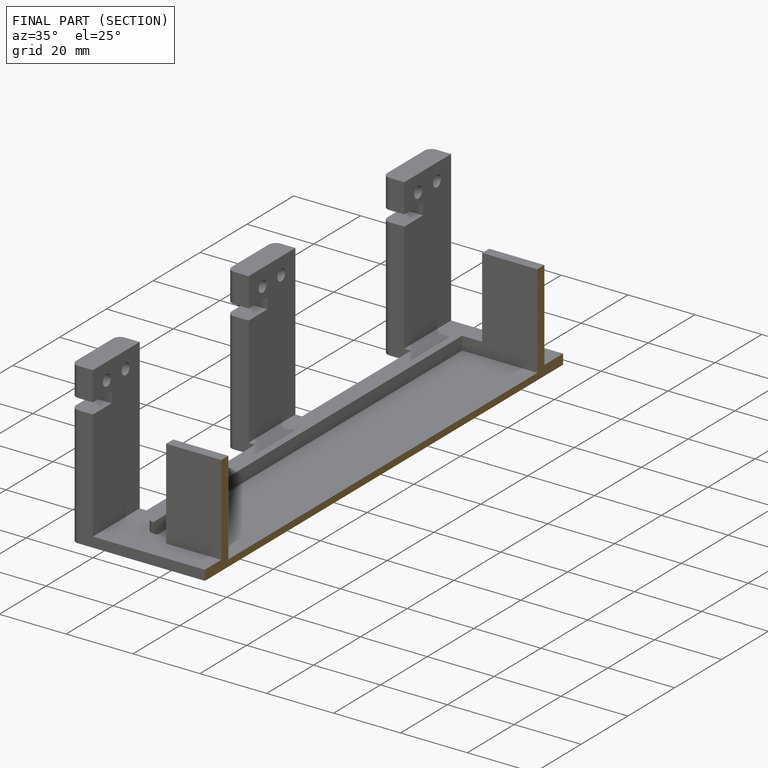
[diagram: finished part — half-section view (interior)]
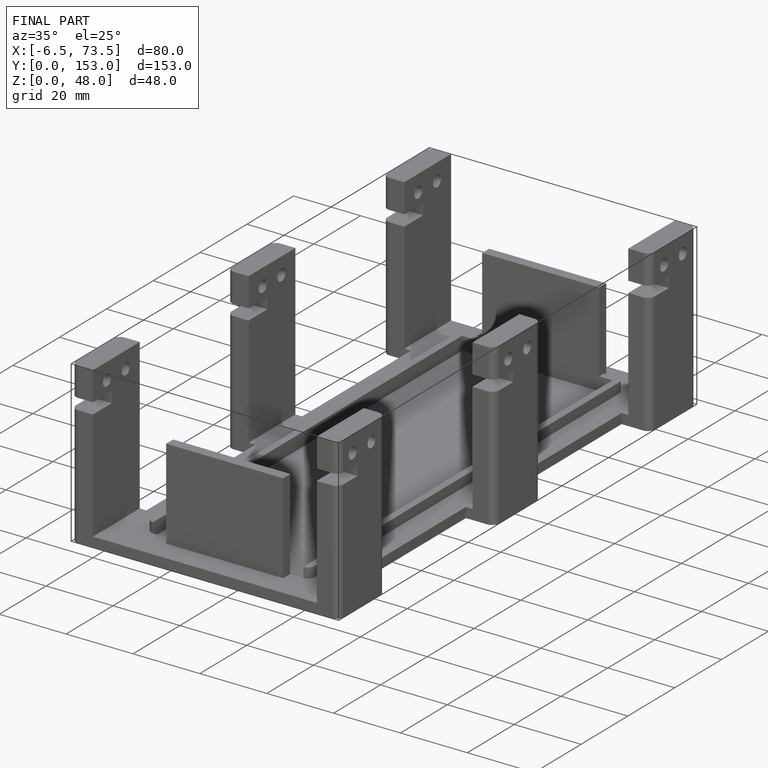
[diagram: finished part — iso view with bounding-box wireframe]
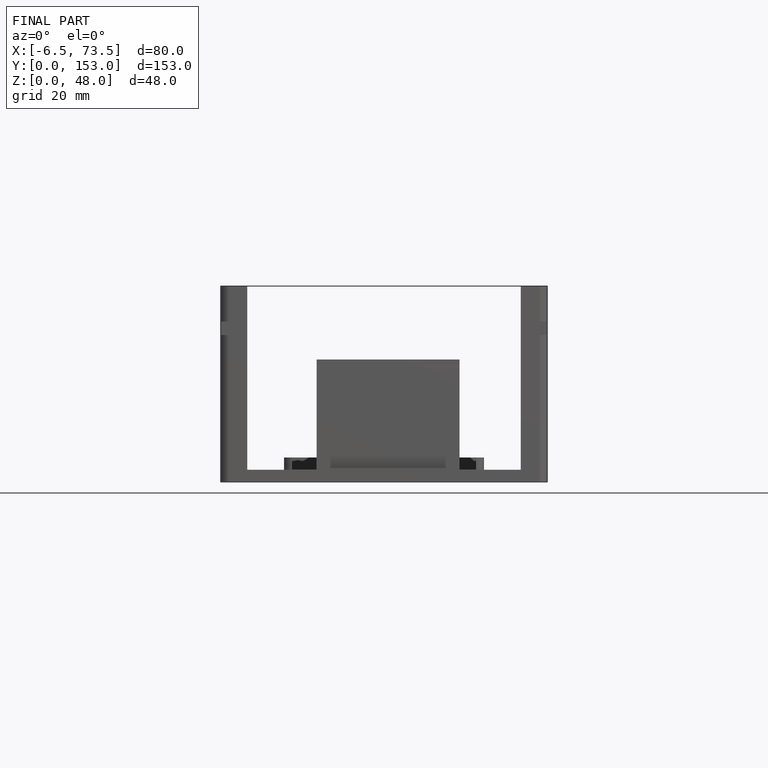
[diagram: finished part — front view with bounding-box wireframe]
